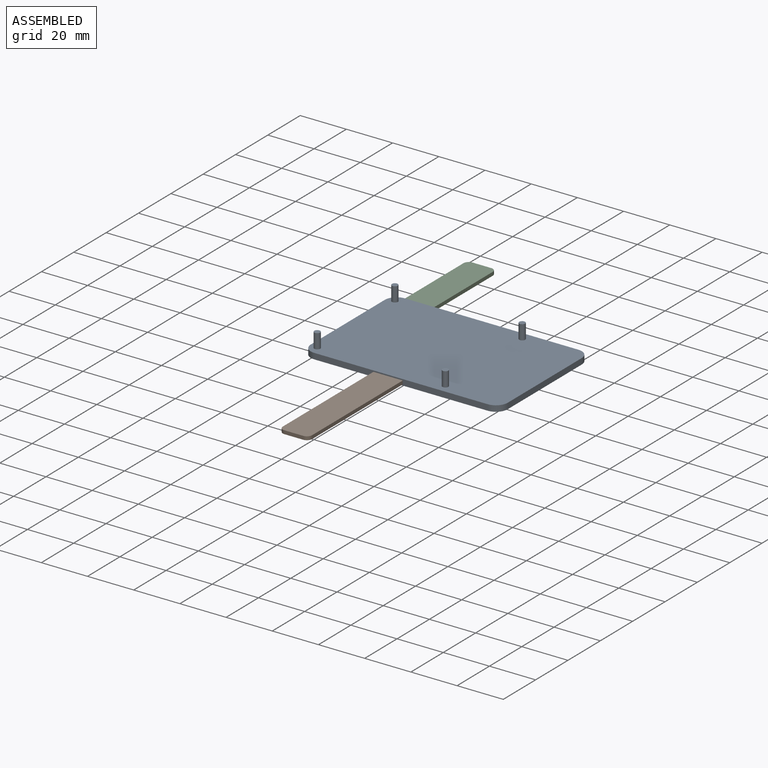
[diagram: assembled view]
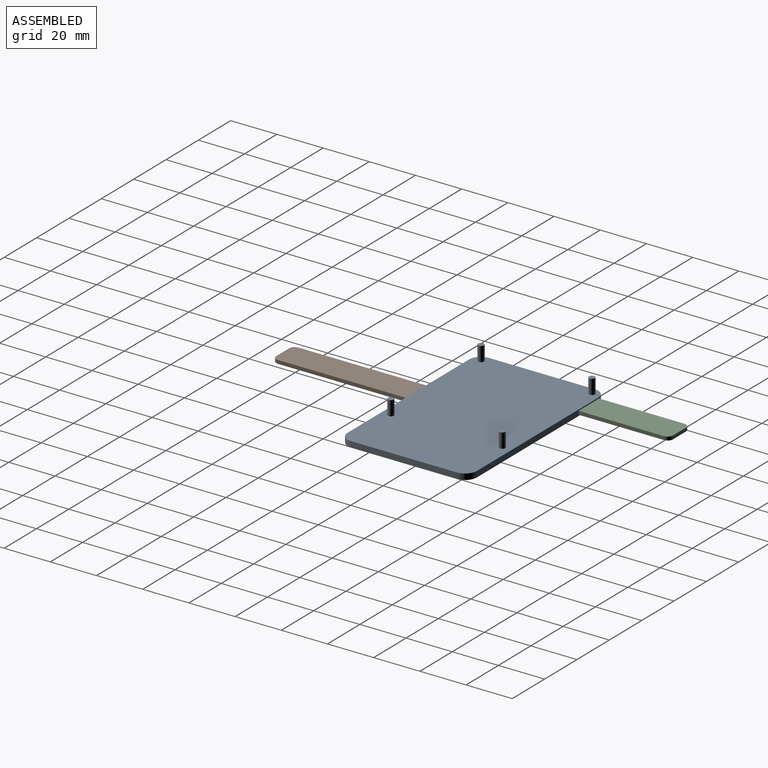
[diagram: assembled view, second angle]
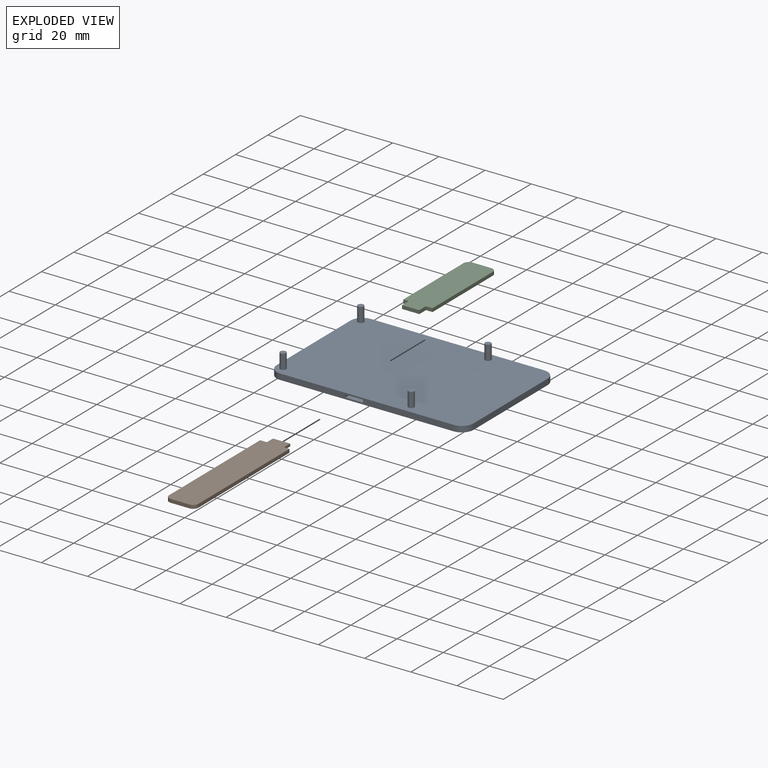
[diagram: exploded view]
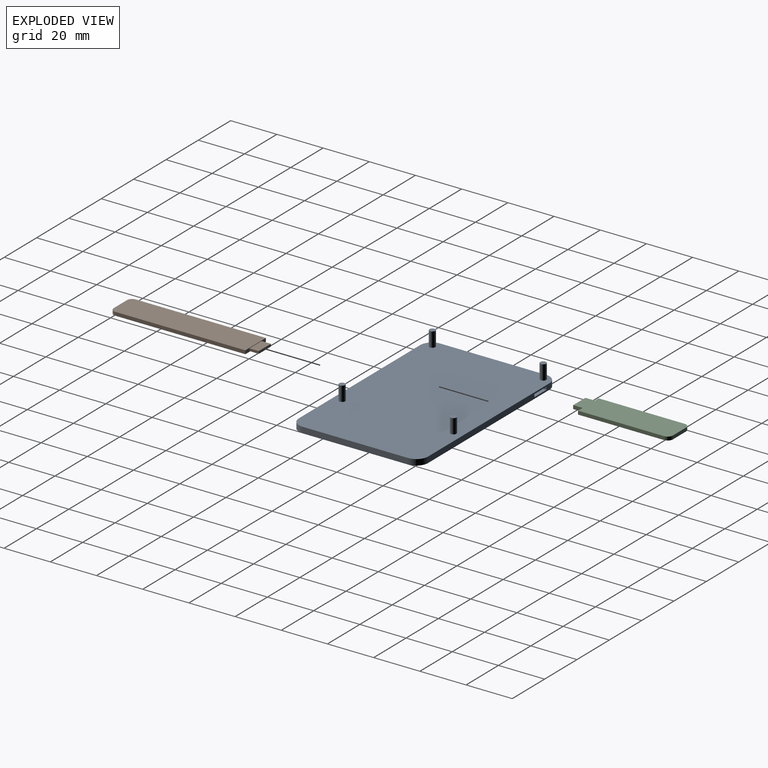
[diagram: exploded view, second angle]
ASSEMBLY  parts=3 mates=2
PART A: 28 faces, bbox 85.2x55.9x8.9 mm
  f0: plane 75.08x2.54mm, normal (0,1,0), area 181.7mm2, adj f4,f5,f6,f7,f23,f24,f25,f26
  f1: plane 75.08x2.54mm, normal (0,-1,0), area 181.6mm2, adj f4,f5,f8,f9,f18,f19,f20,f21
  f2: plane 45.77x2.54mm, normal (-1,0,0), area 116.3mm2, adj f4,f5,f7,f8
  f3: plane 45.77x2.54mm, normal (1,0,0), area 116.3mm2, adj f4,f5,f6,f9
  f4: plane 85.24x55.93mm, normal (0,0,1), area 4724.6mm2, adj f0,f1,f2,f3,f6,f7,f8,f9
  f5: plane 85.24x55.93mm, normal (0,0,-1), area 4745.6mm2, adj f0,f1,f2,f3,f6,f7,f8,f9
  f6: cylinder r=5.08mm len=5.08mm, axis (0,0,1), area 20.3mm2, adj f0,f3,f4,f5
  f7: cylinder r=5.08mm len=5.08mm, axis (0,0,-1), area 20.3mm2, adj f0,f2,f4,f5
  f8: cylinder r=5.08mm len=5.08mm, axis (0,0,1), area 20.3mm2, adj f1,f2,f4,f5
  f9: cylinder r=5.08mm len=5.08mm, axis (0,0,-1), area 20.3mm2, adj f1,f3,f4,f5
  f10: cylinder r=1.29mm len=6.35mm, axis (0,0,-1), area 51.6mm2, adj f4,f11
  f11: plane 2.59x2.59mm, normal (0,0,1), area 5.2mm2, adj f10
  f12: cylinder r=1.29mm len=6.35mm, axis (0,0,-1), area 51.6mm2, adj f4,f13
  f13: plane 2.59x2.59mm, normal (0,0,1), area 5.2mm2, adj f12
  f14: cylinder r=1.29mm len=6.35mm, axis (0,0,-1), area 51.6mm2, adj f4,f15
  f15: plane 2.59x2.59mm, normal (0,0,1), area 5.2mm2, adj f14
  f16: cylinder r=1.29mm len=6.35mm, axis (0,0,-1), area 51.6mm2, adj f4,f17
  f17: plane 2.59x2.59mm, normal (0,0,1), area 5.2mm2, adj f16
  f18: plane 7.61x4.32mm, normal (0,0,1), area 32.8mm2, adj f1,f19,f21,f22
  f19: plane 4.32x1.2mm, normal (-1,0,0), area 5.2mm2, adj f1,f18,f20,f22
  f20: plane 7.61x4.32mm, normal (0,0,-1), area 32.8mm2, adj f1,f19,f21,f22
  f21: plane 4.32x1.2mm, normal (1,0,0), area 5.2mm2, adj f1,f18,f20,f22
  f22: plane 7.61x1.2mm, normal (0,-1,0), area 9.2mm2, adj f18,f19,f20,f21
  f23: plane 7.58x4.32mm, normal (0,0,1), area 32.7mm2, adj f0,f24,f26,f27
  f24: plane 4.32x1.19mm, normal (1,0,0), area 5.1mm2, adj f0,f23,f25,f27
  f25: plane 7.58x4.32mm, normal (0,0,-1), area 32.7mm2, adj f0,f24,f26,f27
  f26: plane 4.32x1.19mm, normal (-1,0,0), area 5.1mm2, adj f0,f23,f25,f27
  f27: plane 7.58x1.19mm, normal (0,1,0), area 9mm2, adj f23,f24,f25,f26
PART B: 13 faces, bbox 12.7x62.6x1.5 mm
  f0: plane 56.28x1.52mm, normal (-1,0,0), area 85.8mm2, adj f1,f4,f5,f7
  f1: plane 12.69x1.52mm, normal (0,-1,0), area 11.4mm2, adj f0,f2,f4,f5,f8,f9,f10,f11
  f2: plane 56.28x1.52mm, normal (1,0,0), area 85.8mm2, adj f1,f4,f5,f6
  f3: plane 8.12x1.52mm, normal (0,1,0), area 12.4mm2, adj f4,f5,f6,f7
  f4: plane 58.56x12.69mm, normal (0,0,1), area 740.8mm2, adj f0,f1,f2,f3,f6,f7
  f5: plane 58.56x12.69mm, normal (0,0,-1), area 740.8mm2, adj f0,f1,f2,f3,f6,f7
  f6: cylinder r=2.29mm len=2.29mm, axis (0,0,1), area 5.5mm2, adj f2,f3,f4,f5
  f7: cylinder r=2.29mm len=2.29mm, axis (0,0,-1), area 5.5mm2, adj f0,f3,f4,f5
  f8: plane 7.5x4.06mm, normal (0,0,-1), area 30.5mm2, adj f1,f9,f11,f12
  f9: plane 4.06x1.06mm, normal (1,0,0), area 4.3mm2, adj f1,f8,f10,f12
  f10: plane 7.5x4.06mm, normal (0,0,1), area 30.5mm2, adj f1,f9,f11,f12
  f11: plane 4.06x1.06mm, normal (-1,0,0), area 4.3mm2, adj f1,f8,f10,f12
  f12: plane 7.5x1.06mm, normal (0,-1,0), area 7.9mm2, adj f8,f9,f10,f11
PART C: 12 faces, bbox 12.7x43.6x1.5 mm
  f0: plane 2.33x1.52mm, normal (0,-1,0), area 3.5mm2, adj f1,f7,f8,f9
  f1: plane 4.07x1.52mm, normal (-1,0,0), area 6.2mm2, adj f0,f2,f8,f9
  f2: plane 7.51x1.52mm, normal (0,-1,0), area 11.4mm2, adj f1,f3,f8,f9
  f3: plane 4.07x1.52mm, normal (1,0,0), area 6.2mm2, adj f2,f4,f8,f9
  f4: plane 2.85x1.52mm, normal (0,-1,0), area 4.3mm2, adj f3,f5,f8,f9
  f5: plane 37.24x1.52mm, normal (1,0,0), area 56.8mm2, adj f4,f8,f9,f10
  f6: plane 8.12x1.52mm, normal (0,1,0), area 12.4mm2, adj f8,f9,f10,f11
  f7: plane 37.24x1.52mm, normal (-1,0,0), area 56.8mm2, adj f0,f8,f9,f11
  f8: plane 43.6x12.69mm, normal (0,0,1), area 529.9mm2, adj f0,f1,f2,f3,f4,f5,f6,f7
  f9: plane 43.6x12.69mm, normal (0,0,-1), area 529.9mm2, adj f0,f1,f2,f3,f4,f5,f6,f7
  f10: cylinder r=2.29mm len=2.29mm, axis (0,0,1), area 5.5mm2, adj f5,f6,f8,f9
  f11: cylinder r=2.29mm len=2.29mm, axis (0,0,-1), area 5.5mm2, adj f6,f7,f8,f9
PLACE A t=(82.3,18.56,34.26)mm
PLACE B rot(axis=(0,0,1),180deg) t=(76.79,-18.15,34.73)mm
PLACE C t=(61.59,61.95,34.77)mm
MATE parallel B.f12 <-> A.f22  axis (0,1,0) through (76.79,-5.09,35.55)mm
MATE parallel C.f2 <-> A.f27  axis (0,-1,0) through (50.34,42.21,35.53)mm
